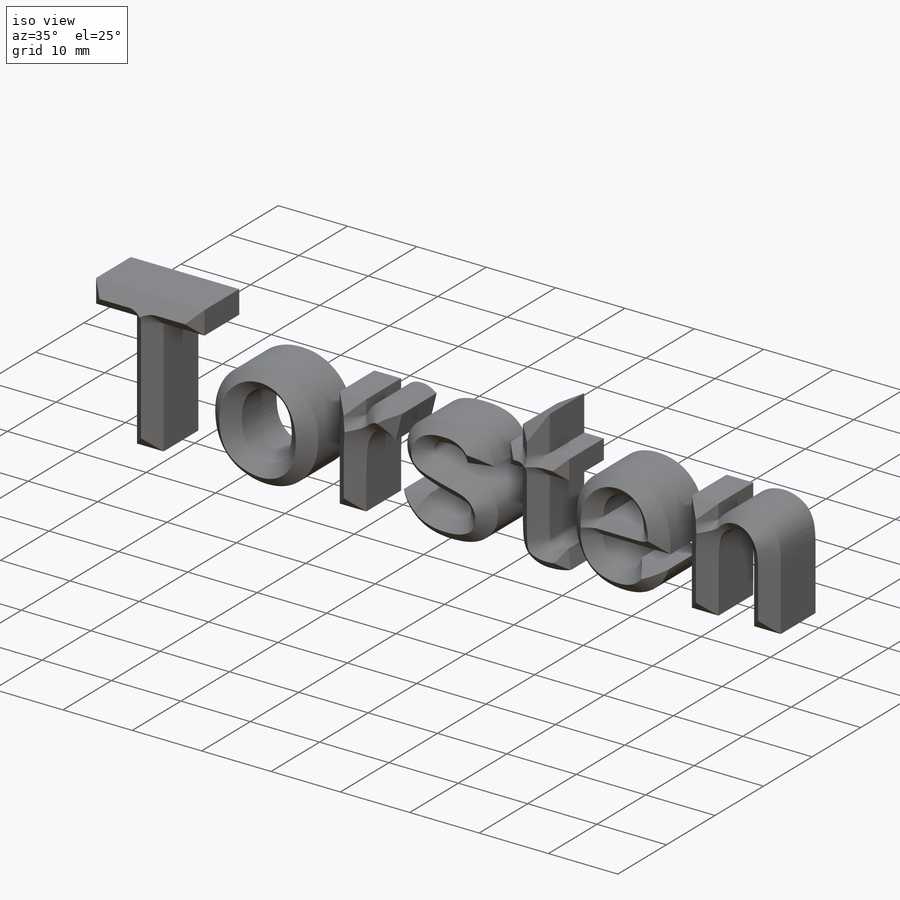
[diagram: iso view]
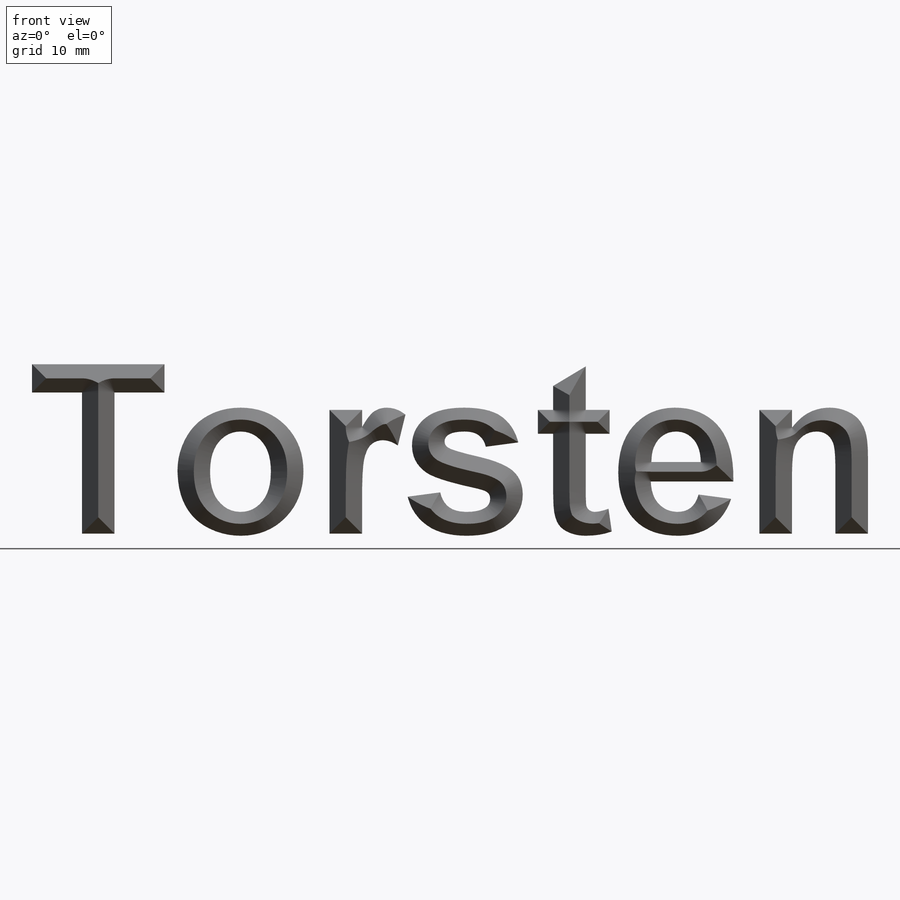
[diagram: front view]
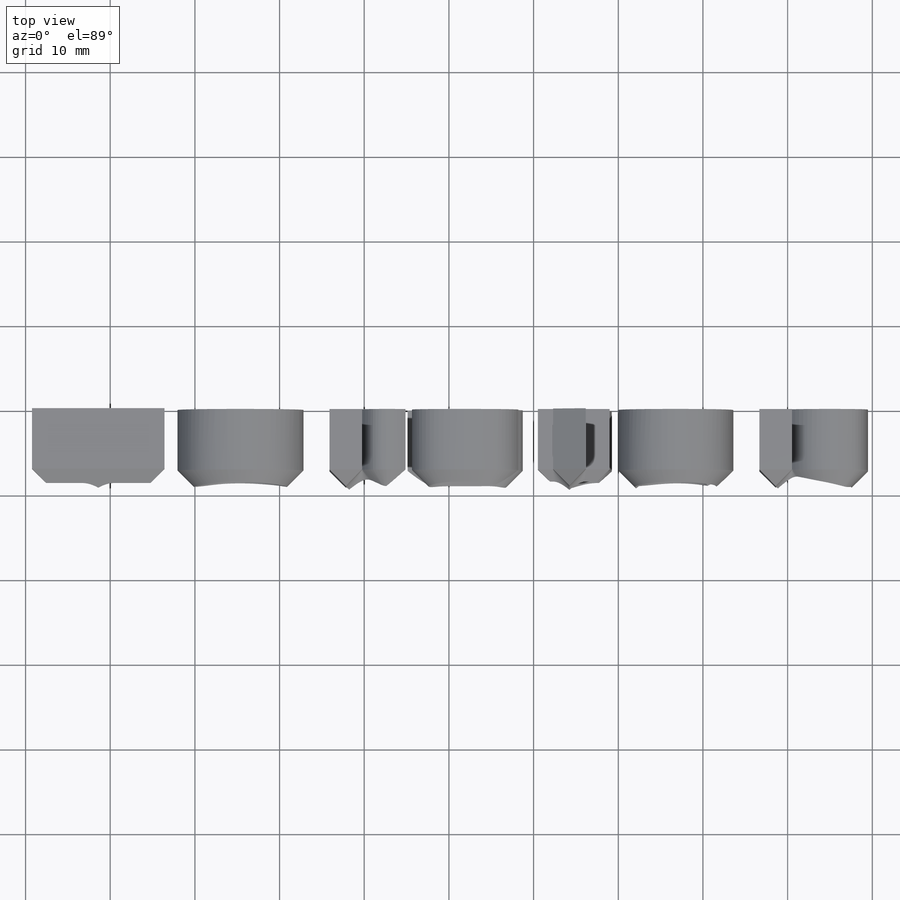
[diagram: top view]
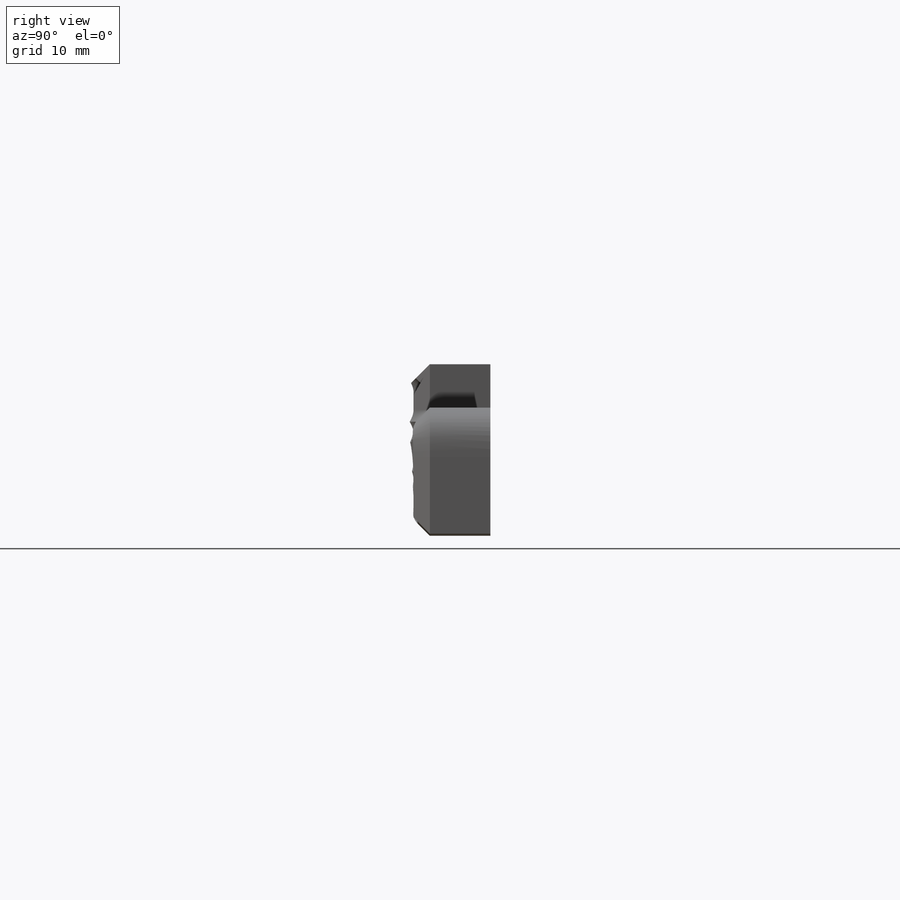
[diagram: right view]
SOLIDWORKS PART (.sldprt)
format: sldprt  version: not decoded by parser v0  size: 3,247,104 bytes
history: native  units: mm
features: sketch x523, plane x177, sweep x87, cut_revolve x37, material x1, extrude x1 (+9 scaffold rows collapsed)
feature tree (835):
  scaffold x9  (default folders/planes/origin — collapsed)
  material  "Material <nicht festgelegt>"
  plane  "Ebene vorne"
  plane  "Ebene oben"
  plane  "Ebene rechts"
  sketch  "Schrift"  dims[D1=100.0mm D2=100.0mm D3=100.0mm]
  extrude  "Aufsatz-Linear austragen1"  Depth=10mm
  sketch  "Skizze1"
  sketch  "Skizze2"
  sketch  "Skizze3"
  sketch  "Skizze4"
  sketch  "Skizze5"
  sketch  "Skizze6"
  sketch  "Skizze7"
  sketch  "Skizze8"
  sketch  "Skizze9"
  sketch  "Skizze10"
  sketch  "Skizze11"
  sketch  "Skizze12"
  sketch  "Skizze13"
  sketch  "Skizze14"
  sketch  "Skizze15"
  sketch  "Skizze16"
  sketch  "Skizze17"
  sketch  "Skizze18"
  sketch  "Skizze19"
  sketch  "Skizze20"
  sketch  "Skizze21"
  sketch  "Skizze22"
  sketch  "Skizze23"
  sketch  "Skizze24"
  sketch  "Skizze25"
  sketch  "Skizze26"
  sketch  "Skizze27"
  sketch  "Skizze28"
  sketch  "Skizze29"
  sketch  "Skizze30"
  sketch  "Skizze31"
  sketch  "Skizze32"
  sketch  "Skizze33"
  sketch  "Skizze34"
  sketch  "Skizze35"
  sketch  "Skizze36"
  sketch  "Skizze37"
  sketch  "Skizze38"
  sketch  "Skizze39"
  sketch  "Skizze40"
  sketch  "Skizze41"
  sketch  "Skizze42"
  sketch  "Skizze43"
  sketch  "Skizze44"
  sketch  "Skizze45"
  sketch  "Skizze46"
  sketch  "Skizze47"
  sketch  "Skizze48"
  sketch  "Skizze49"
  sketch  "Skizze50"
  sketch  "Skizze51"
  sketch  "Skizze52"
  sketch  "Skizze53"
  sketch  "Skizze54"
  sketch  "Skizze55"
  sketch  "Skizze56"
  sketch  "Skizze57"
  sketch  "Skizze58"
  sketch  "Skizze59"
  sketch  "Skizze60"
  sketch  "Skizze61"
  sketch  "Skizze62"
  sketch  "Skizze63"
  sketch  "Skizze64"
  sketch  "Skizze65"
  sketch  "Skizze66"
  sketch  "Skizze67"
  sketch  "Skizze68"
  sketch  "Skizze69"
  sketch  "Skizze70"
  sketch  "Skizze71"
  sketch  "Skizze72"
  sketch  "Skizze73"
  sketch  "Skizze74"
  sketch  "Skizze75"
  sketch  "Skizze76"
  sketch  "Skizze77"
  sketch  "Skizze78"
  sketch  "Skizze79"
  sketch  "Skizze80"
  sketch  "Skizze81"
  sketch  "Skizze82"
  sketch  "Skizze83"
  sketch  "Skizze84"
  sketch  "Skizze85"
  sketch  "Skizze86"
  sketch  "Skizze87"
  sketch  "3D-Skizze1"
  plane  "Ebene1"
  sketch  "Skizze88"
  sketch  "Skizze89"
  sketch  "3D-Skizze2"
  plane  "Ebene2"
  sketch  "Skizze90"
  sketch  "3D-Skizze3"
  plane  "Ebene3"
  sketch  "Skizze91"
  sketch  "Skizze92"
  sketch  "3D-Skizze4"
  plane  "Ebene4"
  sketch  "Skizze93"
  sketch  "3D-Skizze5"
  plane  "Ebene5"
  sketch  "Skizze94"
  sketch  "Skizze95"
  sketch  "3D-Skizze6"
  plane  "Ebene6"
  sketch  "Skizze96"
  sketch  "3D-Skizze7"
  plane  "Ebene7"
  sketch  "Skizze97"
  sketch  "Skizze98"
  sketch  "3D-Skizze8"
  plane  "Ebene8"
  sketch  "Skizze99"
  sketch  "3D-Skizze9"
  plane  "Ebene9"
  sketch  "Skizze100"
  sketch  "Skizze101"
  sketch  "3D-Skizze10"
  plane  "Ebene10"
  sketch  "Skizze102"
  sketch  "3D-Skizze11"
  plane  "Ebene11"
  sketch  "Skizze103"
  sketch  "Skizze104"
  sketch  "3D-Skizze12"
  plane  "Ebene12"
  sketch  "Skizze105"
  sketch  "3D-Skizze13"
  plane  "Ebene13"
  sketch  "Skizze106"
  sketch  "Skizze107"
  sketch  "3D-Skizze14"
  plane  "Ebene14"
  sketch  "Skizze108"
  sketch  "3D-Skizze15"
  plane  "Ebene15"
  sketch  "Skizze109"
  sketch  "Skizze110"
  sketch  "3D-Skizze16"
  plane  "Ebene16"
  sketch  "Skizze111"
  sketch  "3D-Skizze17"
  plane  "Ebene17"
  sketch  "Skizze112"
  sketch  "Skizze113"
  sketch  "3D-Skizze18"
  plane  "Ebene18"
  sketch  "Skizze114"
  sketch  "3D-Skizze19"
  plane  "Ebene19"
  sketch  "Skizze115"
  sketch  "Skizze116"
  sketch  "3D-Skizze20"
  plane  "Ebene20"
  sketch  "Skizze117"
  sketch  "3D-Skizze21"
  plane  "Ebene21"
  sketch  "Skizze118"
  sketch  "Skizze119"
  sketch  "3D-Skizze22"
  plane  "Ebene22"
  sketch  "Skizze120"
  sketch  "3D-Skizze23"
  plane  "Ebene23"
  sketch  "Skizze121"
  sketch  "Skizze122"
  sketch  "3D-Skizze24"
  plane  "Ebene24"
  sketch  "Skizze123"
  sketch  "3D-Skizze25"
  plane  "Ebene25"
  sketch  "Skizze124"
  sketch  "Skizze125"
  sketch  "3D-Skizze26"
  plane  "Ebene26"
  sketch  "Skizze126"
  sketch  "3D-Skizze27"
  plane  "Ebene27"
  sketch  "Skizze127"
  sketch  "Skizze128"
  sketch  "3D-Skizze28"
  plane  "Ebene28"
  sketch  "Skizze129"
  sketch  "3D-Skizze29"
  plane  "Ebene29"
  sketch  "Skizze130"
  sketch  "Skizze131"
  sketch  "3D-Skizze30"
  plane  "Ebene30"
  sketch  "Skizze132"
  sketch  "3D-Skizze31"
  plane  "Ebene31"
  sketch  "Skizze133"
  sketch  "Skizze134"
  sketch  "3D-Skizze32"
  plane  "Ebene32"
  sketch  "Skizze135"
  sketch  "3D-Skizze33"
  plane  "Ebene33"
  sketch  "Skizze136"
  sketch  "Skizze137"
  sketch  "3D-Skizze34"
  plane  "Ebene34"
  sketch  "Skizze138"
  sketch  "3D-Skizze35"
  plane  "Ebene35"
  sketch  "Skizze139"
  sketch  "Skizze140"
  sketch  "3D-Skizze36"
  plane  "Ebene36"
  sketch  "Skizze141"
  sketch  "3D-Skizze37"
  plane  "Ebene37"
  sketch  "Skizze142"
  sketch  "Skizze143"
  sketch  "3D-Skizze38"
  plane  "Ebene38"
  sketch  "Skizze144"
  sketch  "3D-Skizze39"
  plane  "Ebene39"
  sketch  "Skizze145"
  sketch  "Skizze146"
  sketch  "3D-Skizze40"
  plane  "Ebene40"
  sketch  "Skizze147"
  sketch  "3D-Skizze41"
  plane  "Ebene41"
  sketch  "Skizze148"
  sketch  "Skizze149"
  sketch  "3D-Skizze42"
  plane  "Ebene42"
  sketch  "Skizze150"
  sketch  "3D-Skizze43"
  plane  "Ebene43"
  sketch  "Skizze151"
  sketch  "Skizze152"
  sketch  "3D-Skizze44"
  plane  "Ebene44"
  sketch  "Skizze153"
  sketch  "3D-Skizze45"
  plane  "Ebene45"
  sketch  "Skizze154"
  sketch  "Skizze155"
  sketch  "3D-Skizze46"
  plane  "Ebene46"
  sketch  "Skizze156"
  sketch  "3D-Skizze47"
  plane  "Ebene47"
  sketch  "Skizze157"
  sketch  "Skizze158"
  sketch  "3D-Skizze48"
  plane  "Ebene48"
  sketch  "Skizze159"
  sketch  "3D-Skizze49"
  plane  "Ebene49"
  sketch  "Skizze160"
  sketch  "Skizze161"
  sketch  "3D-Skizze50"
  plane  "Ebene50"
  sketch  "Skizze162"
  sketch  "3D-Skizze51"
  plane  "Ebene51"
  sketch  "Skizze163"
  sketch  "Skizze164"
  sketch  "3D-Skizze52"
  plane  "Ebene52"
  sketch  "Skizze165"
  sketch  "3D-Skizze53"
  plane  "Ebene53"
  sketch  "Skizze166"
  sketch  "Skizze167"
  sketch  "3D-Skizze54"
  plane  "Ebene54"
  sketch  "Skizze168"
  sketch  "3D-Skizze55"
  plane  "Ebene55"
  sketch  "Skizze169"
  sketch  "Skizze170"
  sketch  "3D-Skizze56"
  plane  "Ebene56"
  sketch  "Skizze171"
  sketch  "3D-Skizze57"
  plane  "Ebene57"
  sketch  "Skizze172"
  sketch  "Skizze173"
  sketch  "3D-Skizze58"
  plane  "Ebene58"
  sketch  "Skizze174"
  sketch  "3D-Skizze59"
  plane  "Ebene59"
  sketch  "Skizze175"
  sketch  "Skizze176"
  sketch  "3D-Skizze60"
  plane  "Ebene60"
  sketch  "Skizze177"
  sketch  "3D-Skizze61"
  plane  "Ebene61"
  sketch  "Skizze178"
  sketch  "Skizze179"
  sketch  "3D-Skizze62"
  plane  "Ebene62"
  sketch  "Skizze180"
  sketch  "3D-Skizze63"
  plane  "Ebene63"
  sketch  "Skizze181"
  sketch  "Skizze182"
  sketch  "3D-Skizze64"
  plane  "Ebene64"
  sketch  "Skizze183"
  sketch  "3D-Skizze65"
  plane  "Ebene65"
  sketch  "Skizze184"
  sketch  "Skizze185"
  sketch  "3D-Skizze66"
  plane  "Ebene66"
  sketch  "Skizze186"
  sketch  "3D-Skizze67"
  plane  "Ebene67"
  sketch  "Skizze187"
  sketch  "Skizze188"
  sketch  "3D-Skizze68"
  plane  "Ebene68"
  sketch  "Skizze189"
  sketch  "3D-Skizze69"
  plane  "Ebene69"
  sketch  "Skizze190"
  sketch  "Skizze191"
  sketch  "3D-Skizze70"
  plane  "Ebene70"
  sketch  "Skizze192"
  sketch  "3D-Skizze71"
  plane  "Ebene71"
  sketch  "Skizze193"
  sketch  "Skizze194"
  sketch  "3D-Skizze72"
  plane  "Ebene72"
  sketch  "Skizze195"
  sketch  "3D-Skizze73"
  plane  "Ebene73"
  sketch  "Skizze196"
  sketch  "Skizze197"
  sketch  "3D-Skizze74"
  plane  "Ebene74"
  sketch  "Skizze198"
  sketch  "3D-Skizze75"
  plane  "Ebene75"
  sketch  "Skizze199"
  sketch  "Skizze200"
  sketch  "3D-Skizze76"
  plane  "Ebene76"
  sketch  "Skizze201"
  sketch  "3D-Skizze77"
  plane  "Ebene77"
  sketch  "Skizze202"
  sketch  "Skizze203"
  sketch  "3D-Skizze78"
  plane  "Ebene78"
  sketch  "Skizze204"
  sketch  "3D-Skizze79"
  plane  "Ebene79"
  sketch  "Skizze205"
  sketch  "Skizze206"
  sketch  "3D-Skizze80"
  plane  "Ebene80"
  sketch  "Skizze207"
  sketch  "3D-Skizze81"
  plane  "Ebene81"
  sketch  "Skizze208"
  sketch  "Skizze209"
  sketch  "3D-Skizze82"
  plane  "Ebene82"
  sketch  "Skizze210"
  sketch  "3D-Skizze83"
  plane  "Ebene83"
  sketch  "Skizze211"
  sketch  "Skizze212"
  sketch  "3D-Skizze84"
  plane  "Ebene84"
  sketch  "Skizze213"
  sketch  "3D-Skizze85"
  plane  "Ebene85"
  sketch  "Skizze214"
  sketch  "Skizze215"
  sketch  "3D-Skizze86"
  plane  "Ebene86"
  sketch  "Skizze216"
  sketch  "3D-Skizze87"
  plane  "Ebene87"
  sketch  "Skizze217"
  sketch  "Skizze218"
  sketch  "3D-Skizze88"
  plane  "Ebene88"
  sketch  "Skizze219"
  sketch  "3D-Skizze89"
  plane  "Ebene89"
  sketch  "Skizze220"
  sketch  "Skizze221"
  sketch  "3D-Skizze90"
  plane  "Ebene90"
  sketch  "Skizze222"
  sketch  "3D-Skizze91"
  plane  "Ebene91"
  sketch  "Skizze223"
  sketch  "Skizze224"
  sketch  "3D-Skizze92"
  plane  "Ebene92"
  sketch  "Skizze225"
  sketch  "3D-Skizze93"
  plane  "Ebene93"
  sketch  "Skizze226"
  sketch  "Skizze227"
  sketch  "3D-Skizze94"
  plane  "Ebene94"
  sketch  "Skizze228"
  sketch  "3D-Skizze95"
  plane  "Ebene95"
  sketch  "Skizze229"
  sketch  "Skizze230"
  sketch  "3D-Skizze96"
  plane  "Ebene96"
  sketch  "Skizze231"
  sketch  "3D-Skizze97"
  plane  "Ebene97"
  sketch  "Skizze232"
  sketch  "Skizze233"
  sketch  "3D-Skizze98"
  plane  "Ebene98"
  sketch  "Skizze234"
  sketch  "3D-Skizze99"
  plane  "Ebene99"
  sketch  "Skizze235"
  sketch  "Skizze236"
  sketch  "3D-Skizze100"
  plane  "Ebene100"
  sketch  "Skizze237"
  sketch  "3D-Skizze101"
  plane  "Ebene101"
  sketch  "Skizze238"
  sketch  "Skizze239"
  sketch  "3D-Skizze102"
  plane  "Ebene102"
  sketch  "Skizze240"
  sketch  "3D-Skizze103"
  plane  "Ebene103"
  sketch  "Skizze241"
  sketch  "Skizze242"
  sketch  "3D-Skizze104"
  plane  "Ebene104"
  sketch  "Skizze243"
  sketch  "3D-Skizze105"
  plane  "Ebene105"
  sketch  "Skizze244"
  sketch  "Skizze245"
  sketch  "3D-Skizze106"
  plane  "Ebene106"
  sketch  "Skizze246"
  sketch  "3D-Skizze107"
  plane  "Ebene107"
  sketch  "Skizze247"
  sketch  "Skizze248"
  sketch  "3D-Skizze108"
  plane  "Ebene108"
  sketch  "Skizze249"
  sketch  "3D-Skizze109"
  plane  "Ebene109"
  sketch  "Skizze250"
  sketch  "Skizze251"
  sketch  "3D-Skizze110"
  plane  "Ebene110"
  sketch  "Skizze252"
  sketch  "3D-Skizze111"
  plane  "Ebene111"
  sketch  "Skizze253"
  sketch  "Skizze254"
  sketch  "3D-Skizze112"
  plane  "Ebene112"
  sketch  "Skizze255"
  sketch  "3D-Skizze113"
  plane  "Ebene113"
  sketch  "Skizze256"
  sketch  "Skizze257"
  sketch  "3D-Skizze114"
  plane  "Ebene114"
  sketch  "Skizze258"
  sketch  "3D-Skizze115"
  plane  "Ebene115"
  sketch  "Skizze259"
  sketch  "Skizze260"
  sketch  "3D-Skizze116"
  plane  "Ebene116"
  sketch  "Skizze261"
  sketch  "3D-Skizze117"
  plane  "Ebene117"
  sketch  "Skizze262"
  sketch  "Skizze263"
  sketch  "3D-Skizze118"
  plane  "Ebene118"
  sketch  "Skizze264"
  sketch  "3D-Skizze119"
  plane  "Ebene119"
  sketch  "Skizze265"
  sketch  "Skizze266"
  sketch  "3D-Skizze120"
  plane  "Ebene120"
  sketch  "Skizze267"
  sketch  "3D-Skizze121"
  plane  "Ebene121"
  sketch  "Skizze268"
  sketch  "Skizze269"
  sketch  "3D-Skizze122"
  plane  "Ebene122"
  sketch  "Skizze270"
  sketch  "3D-Skizze123"
  plane  "Ebene123"
  sketch  "Skizze271"
  sketch  "Skizze272"
  sketch  "3D-Skizze124"
  plane  "Ebene124"
  sketch  "Skizze273"
  sketch  "3D-Skizze125"
  plane  "Ebene125"
  sketch  "Skizze274"
  sketch  "Skizze275"
  sketch  "3D-Skizze126"
  plane  "Ebene126"
  sketch  "Skizze276"
  sketch  "3D-Skizze127"
  plane  "Ebene127"
  sketch  "Skizze277"
  sketch  "Skizze278"
  sketch  "3D-Skizze128"
  plane  "Ebene128"
  sketch  "Skizze279"
  sketch  "3D-Skizze129"
  plane  "Ebene129"
  sketch  "Skizze280"
  sketch  "Skizze281"
  sketch  "3D-Skizze130"
  plane  "Ebene130"
  sketch  "Skizze282"
  sketch  "3D-Skizze131"
  plane  "Ebene131"
  sketch  "Skizze283"
  sketch  "Skizze284"
  sketch  "3D-Skizze132"
  plane  "Ebene132"
  sketch  "Skizze285"
  sketch  "3D-Skizze133"
  plane  "Ebene133"
  sketch  "Skizze286"
  sketch  "Skizze287"
  sketch  "3D-Skizze134"
  plane  "Ebene134"
  sketch  "Skizze288"
  sketch  "3D-Skizze135"
  plane  "Ebene135"
  sketch  "Skizze289"
  sketch  "Skizze290"
  sketch  "3D-Skizze136"
  plane  "Ebene136"
  sketch  "Skizze291"
  sketch  "3D-Skizze137"
  plane  "Ebene137"
  sketch  "Skizze292"
  sketch  "Skizze293"
  sketch  "3D-Skizze138"
  plane  "Ebene138"
  sketch  "Skizze294"
  sketch  "3D-Skizze139"
  plane  "Ebene139"
  sketch  "Skizze295"
  sketch  "Skizze296"
  sketch  "3D-Skizze140"
  plane  "Ebene140"
  sketch  "Skizze297"
  sketch  "3D-Skizze141"
  plane  "Ebene141"
  sketch  "Skizze298"
  sketch  "Skizze299"
  sketch  "3D-Skizze142"
  plane  "Ebene142"
  sketch  "Skizze300"
  sketch  "3D-Skizze143"
  plane  "Ebene143"
  sketch  "Skizze301"
  sketch  "Skizze302"
  sketch  "3D-Skizze144"
  plane  "Ebene144"
  sketch  "Skizze303"
  sketch  "3D-Skizze145"
  plane  "Ebene145"
  sketch  "Skizze304"
  sketch  "Skizze305"
  sketch  "3D-Skizze146"
  plane  "Ebene146"
  sketch  "Skizze306"
  sketch  "3D-Skizze147"
  plane  "Ebene147"
  sketch  "Skizze307"
  sketch  "Skizze308"
  sketch  "3D-Skizze148"
  plane  "Ebene148"
  sketch  "Skizze309"
  sketch  "3D-Skizze149"
  plane  "Ebene149"
  sketch  "Skizze310"
  sketch  "Skizze311"
  sketch  "3D-Skizze150"
  plane  "Ebene150"
  sketch  "Skizze312"
  sketch  "3D-Skizze151"
  plane  "Ebene151"
  sketch  "Skizze313"
  sketch  "Skizze314"
  sketch  "3D-Skizze152"
  plane  "Ebene152"
  sketch  "Skizze315"
  sketch  "3D-Skizze153"
  plane  "Ebene153"
  sketch  "Skizze316"
  sketch  "Skizze317"
  sketch  "3D-Skizze154"
  plane  "Ebene154"
  sketch  "Skizze318"
  sketch  "3D-Skizze155"
  plane  "Ebene155"
  sketch  "Skizze319"
  sketch  "Skizze320"
  sketch  "3D-Skizze156"
  plane  "Ebene156"
  sketch  "Skizze321"
  sketch  "3D-Skizze157"
  plane  "Ebene157"
  sketch  "Skizze322"
  sketch  "Skizze323"
  sketch  "3D-Skizze158"
  plane  "Ebene158"
  sketch  "Skizze324"
  sketch  "3D-Skizze159"
  plane  "Ebene159"
  sketch  "Skizze325"
  sketch  "Skizze326"
  sketch  "3D-Skizze160"
  plane  "Ebene160"
  sketch  "Skizze327"
  sketch  "3D-Skizze161"
  plane  "Ebene161"
  sketch  "Skizze328"
  sketch  "Skizze329"
  sketch  "3D-Skizze162"
  plane  "Ebene162"
  sketch  "Skizze330"
  sketch  "3D-Skizze163"
  plane  "Ebene163"
  sketch  "Skizze331"
  sketch  "Skizze332"
  sketch  "3D-Skizze164"
  plane  "Ebene164"
  sketch  "Skizze333"
  sketch  "3D-Skizze165"
  plane  "Ebene165"
  sketch  "Skizze334"
  sketch  "Skizze335"
  sketch  "3D-Skizze166"
  plane  "Ebene166"
  sketch  "Skizze336"
  sketch  "3D-Skizze167"
  plane  "Ebene167"
  sketch  "Skizze337"
  sketch  "Skizze338"
  sketch  "3D-Skizze168"
  plane  "Ebene168"
  sketch  "Skizze339"
  sketch  "3D-Skizze169"
  plane  "Ebene169"
  sketch  "Skizze340"
  sketch  "Skizze341"
  sketch  "3D-Skizze170"
  plane  "Ebene170"
  sketch  "Skizze342"
  sketch  "3D-Skizze171"
  plane  "Ebene171"
  sketch  "Skizze343"
  sketch  "Skizze344"
  sketch  "3D-Skizze172"
  plane  "Ebene172"
  sketch  "Skizze345"
  sketch  "3D-Skizze173"
  plane  "Ebene173"
  sketch  "Skizze346"
  sketch  "Skizze347"
  sketch  "3D-Skizze174"
  plane  "Ebene174"
  sketch  "Skizze348"
  sweep  "Schnitt-Austragung1"
  sweep  "Schnitt-Austragung2"
  sweep  "Schnitt-Austragung3"
  sweep  "Schnitt-Austragung4"
  sweep  "Schnitt-Austragung5"
  sweep  "Schnitt-Austragung6"
  sweep  "Schnitt-Austragung7"
  sweep  "Schnitt-Austragung8"
  sweep  "Schnitt-Austragung9"
  sweep  "Schnitt-Austragung10"
  sweep  "Schnitt-Austragung11"
  sweep  "Schnitt-Austragung12"
  sweep  "Schnitt-Austragung13"
  sweep  "Schnitt-Austragung14"
  sweep  "Schnitt-Austragung15"
  sweep  "Schnitt-Austragung16"
  sweep  "Schnitt-Austragung17"
  sweep  "Schnitt-Austragung18"
  sweep  "Schnitt-Austragung19"
  sweep  "Schnitt-Austragung20"
  sweep  "Schnitt-Austragung21"
  sweep  "Schnitt-Austragung22"
  sweep  "Schnitt-Austragung23"
  sweep  "Schnitt-Austragung24"
  sweep  "Schnitt-Austragung25"
  sweep  "Schnitt-Austragung26"
  sweep  "Schnitt-Austragung27"
  sweep  "Schnitt-Austragung28"
  sweep  "Schnitt-Austragung29"
  sweep  "Schnitt-Austragung30"
  sweep  "Schnitt-Austragung31"
  sweep  "Schnitt-Austragung32"
  sweep  "Schnitt-Austragung33"
  sweep  "Schnitt-Austragung34"
  sweep  "Schnitt-Austragung35"
  sweep  "Schnitt-Austragung36"
  sweep  "Schnitt-Austragung37"
  sweep  "Schnitt-Austragung38"
  sweep  "Schnitt-Austragung39"
  sweep  "Schnitt-Austragung40"
  sweep  "Schnitt-Austragung41"
  sweep  "Schnitt-Austragung42"
  sweep  "Schnitt-Austragung43"
  sweep  "Schnitt-Austragung44"
  sweep  "Schnitt-Austragung45"
  sweep  "Schnitt-Austragung46"
  sweep  "Schnitt-Austragung47"
  sweep  "Schnitt-Austragung48"
  sweep  "Schnitt-Austragung49"
  sweep  "Schnitt-Austragung50"
  sweep  "Schnitt-Austragung51"
  sweep  "Schnitt-Austragung52"
  sweep  "Schnitt-Austragung53"
  sweep  "Schnitt-Austragung54"
  sweep  "Schnitt-Austragung55"
  sweep  "Schnitt-Austragung56"
  sweep  "Schnitt-Austragung57"
  sweep  "Schnitt-Austragung58"
  sweep  "Schnitt-Austragung59"
  sweep  "Schnitt-Austragung60"
  sweep  "Schnitt-Austragung61"
  sweep  "Schnitt-Austragung62"
  sweep  "Schnitt-Austragung63"
  sweep  "Schnitt-Austragung64"
  sweep  "Schnitt-Austragung65"
  sweep  "Schnitt-Austragung66"
  sweep  "Schnitt-Austragung67"
  sweep  "Schnitt-Austragung68"
  sweep  "Schnitt-Austragung69"
  sweep  "Schnitt-Austragung70"
  sweep  "Schnitt-Austragung71"
  sweep  "Schnitt-Austragung72"
  sweep  "Schnitt-Austragung73"
  sweep  "Schnitt-Austragung74"
  sweep  "Schnitt-Austragung75"
  sweep  "Schnitt-Austragung76"
  sweep  "Schnitt-Austragung77"
  sweep  "Schnitt-Austragung78"
  sweep  "Schnitt-Austragung79"
  sweep  "Schnitt-Austragung80"
  sweep  "Schnitt-Austragung81"
  sweep  "Schnitt-Austragung82"
  sweep  "Schnitt-Austragung83"
  sweep  "Schnitt-Austragung84"
  sweep  "Schnitt-Austragung85"
  sweep  "Schnitt-Austragung86"
  sweep  "Schnitt-Austragung87"
  cut_revolve  "Schnitt-Rotation1"  Angle=360deg
  cut_revolve  "Schnitt-Rotation7"  Angle=360deg
  cut_revolve  "Schnitt-Rotation13"  Angle=360deg
  cut_revolve  "Schnitt-Rotation15"  Angle=360deg
  cut_revolve  "Schnitt-Rotation17"  Angle=360deg
  cut_revolve  "Schnitt-Rotation25"  Angle=360deg
  cut_revolve  "Schnitt-Rotation29"  Angle=360deg
  cut_revolve  "Schnitt-Rotation35"  Angle=360deg
  cut_revolve  "Schnitt-Rotation36"  Angle=360deg
  cut_revolve  "Schnitt-Rotation37"  Angle=360deg
  cut_revolve  "Schnitt-Rotation39"  Angle=360deg
  cut_revolve  "Schnitt-Rotation43"  Angle=360deg
  cut_revolve  "Schnitt-Rotation45"  Angle=360deg
  cut_revolve  "Schnitt-Rotation48"  Angle=360deg
  cut_revolve  "Schnitt-Rotation65"  Angle=360deg
  cut_revolve  "Schnitt-Rotation75"  Angle=360deg
  cut_revolve  "Schnitt-Rotation77"  Angle=360deg
  cut_revolve  "Schnitt-Rotation79"  Angle=360deg
  cut_revolve  "Schnitt-Rotation87"  Angle=360deg
  cut_revolve  "Schnitt-Rotation97"  Angle=360deg
  cut_revolve  "Schnitt-Rotation101"  Angle=360deg
  cut_revolve  "Schnitt-Rotation102"  Angle=360deg
  cut_revolve  "Schnitt-Rotation103"  Angle=360deg
  cut_revolve  "Schnitt-Rotation105"  Angle=360deg
  cut_revolve  "Schnitt-Rotation117"  Angle=360deg
  cut_revolve  "Schnitt-Rotation119"  Angle=360deg
  cut_revolve  "Schnitt-Rotation127"  Angle=360deg
  cut_revolve  "Schnitt-Rotation141"  Angle=360deg
  cut_revolve  "Schnitt-Rotation143"  Angle=360deg
  cut_revolve  "Schnitt-Rotation145"  Angle=360deg
  cut_revolve  "Schnitt-Rotation147"  Angle=360deg
  cut_revolve  "Schnitt-Rotation149"  Angle=360deg
  cut_revolve  "Schnitt-Rotation161"  Angle=360deg
  cut_revolve  "Schnitt-Rotation163"  Angle=360deg
  cut_revolve  "Schnitt-Rotation165"  Angle=360deg
  cut_revolve  "Schnitt-Rotation167"  Angle=360deg
  cut_revolve  "Schnitt-Rotation169"  Angle=360deg
decode coverage: 39 of 648 modeling features carry decoded parameters
summary: profile_refs inferred from adjacent sketches, not decoded
note: suppression state not decoded; provenance and decode notes live in map.json
